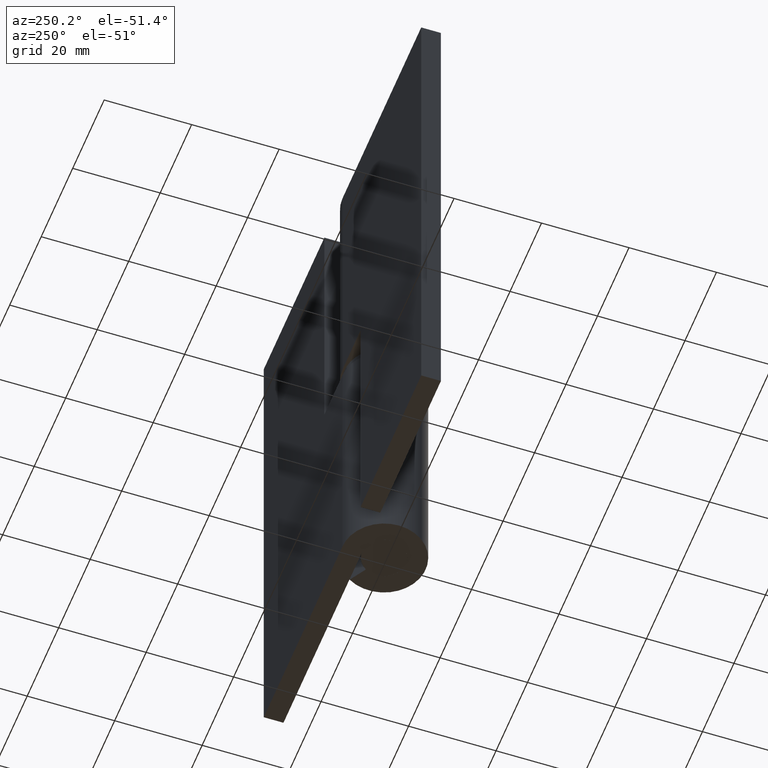
[diagram: clean part render]
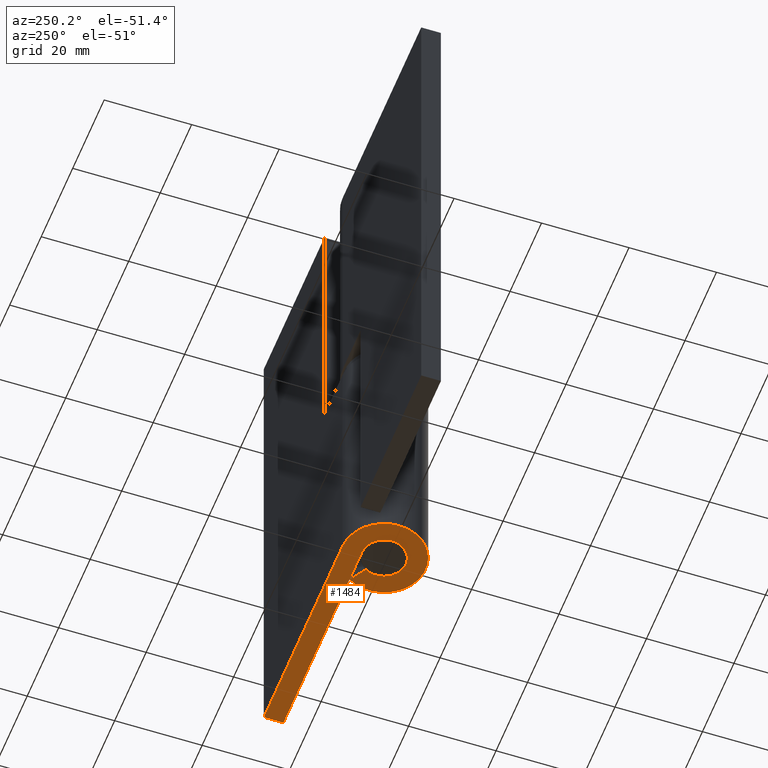
[diagram: same view with one face highlighted and labeled with its STEP entity id]
A machine part, auxiliary view. The second image highlights one B-rep face of the part: STEP entity #1484.
In plain terms, the highlighted face is a freeform B-spline surface patch.
Its self-contained STEP definition (entity closure, byte-faithful):
#1407=CARTESIAN_POINT('',(-12.471756635029839,-10.447973575599120,0.0));
#1408=CARTESIAN_POINT('',(52.972013718958777,-10.447973575599120,0.0));
#1409=CARTESIAN_POINT('',(-12.471756635029839,10.448999265035310,0.0));
#1410=CARTESIAN_POINT('',(52.972013718958777,10.448999265035310,0.0));
#1411=B_SPLINE_SURFACE_WITH_KNOTS('',1,1,((#1407,#1409),(#1408,#1410)),.UNSPECIFIED.,.F.,.F.,.U.,(2,2),(2,2),(0.0,65.443770353988612),(0.0,20.896972840634430),.UNSPECIFIED.);
#1412=CARTESIAN_POINT('',(4.267622743181081,2.605263157894730,0.0));
#1413=VERTEX_POINT('',#1412);
#1414=CARTESIAN_POINT('',(0.0,5.0,0.0));
#1415=VERTEX_POINT('',#1414);
#1416=CARTESIAN_POINT('',(4.267622743181078,2.605263157894728,0.0));
#1417=CARTESIAN_POINT('',(6.279409924410268,-0.690199990631001,0.0));
#1418=CARTESIAN_POINT('',(3.599859763297245,-3.470015804660478,0.0));
#1419=CARTESIAN_POINT('',(0.920309602184222,-6.249831618689957,0.0));
#1420=CARTESIAN_POINT('',(-2.446802424647964,-4.360407996361905,0.0));
#1421=CARTESIAN_POINT('',(-5.813914451480154,-2.470984374033851,0.0));
#1422=CARTESIAN_POINT('',(-4.837460076414559,1.264507812983077,0.0));
#1423=CARTESIAN_POINT('',(-3.861005701348966,4.999999999999999,0.0));
#1424=CARTESIAN_POINT('',(0.0,5.0,0.0));
#1432=(BOUNDED_CURVE()B_SPLINE_CURVE(2,(#1416,#1417,#1418,#1419,#1420,#1421,#1422,#1423,#1424),.UNSPECIFIED.,.F.,.U.)B_SPLINE_CURVE_WITH_KNOTS((3,2,2,2,3),(0.0,0.250000000000000,0.500000000000000,0.750000000000000,1.0),.UNSPECIFIED.)CURVE()GEOMETRIC_REPRESENTATION_ITEM()RATIONAL_B_SPLINE_CURVE((1.0,0.791486437848627,1.0,0.791486437848627,1.0,0.791486437848627,1.0,0.791486437848627,1.0))REPRESENTATION_ITEM(''));
#1433=EDGE_CURVE('',#1413,#1415,#1432,.T.);
#1434=ORIENTED_EDGE('',*,*,#1433,.F.);
#1435=CARTESIAN_POINT('',(8.108483212044041,4.950000000000000,0.0));
#1436=VERTEX_POINT('',#1435);
#1437=CARTESIAN_POINT('',(8.108483212044041,4.950000000000000,0.0));
#1438=CARTESIAN_POINT('',(4.267622743181081,2.605263157894730,0.0));
#1439=QUASI_UNIFORM_CURVE('',1,(#1437,#1438),.UNSPECIFIED.,.F.,.U.);
#1440=EDGE_CURVE('',#1436,#1413,#1439,.T.);
#1441=ORIENTED_EDGE('',*,*,#1440,.F.);
#1442=CARTESIAN_POINT('',(0.0,9.500000000000000,0.0));
#1443=VERTEX_POINT('',#1442);
#1444=CARTESIAN_POINT('',(8.108483212044039,4.949999999999998,0.0));
#1445=CARTESIAN_POINT('',(11.930878856379515,-1.311379982198886,0.0));
#1446=CARTESIAN_POINT('',(6.839733550264771,-6.593030028854902,0.0));
#1447=CARTESIAN_POINT('',(1.748588244150024,-11.874680075510922,0.0));
#1448=CARTESIAN_POINT('',(-4.648924606831132,-8.284775193087620,0.0));
#1449=CARTESIAN_POINT('',(-11.046437457812292,-4.694870310664316,0.0));
#1450=CARTESIAN_POINT('',(-9.191174145187663,2.402564844667847,0.0));
#1451=CARTESIAN_POINT('',(-7.335910832563033,9.500000000000002,0.0));
#1452=CARTESIAN_POINT('',(0.0,9.500000000000000,0.0));
#1460=(BOUNDED_CURVE()B_SPLINE_CURVE(2,(#1444,#1445,#1446,#1447,#1448,#1449,#1450,#1451,#1452),.UNSPECIFIED.,.F.,.U.)B_SPLINE_CURVE_WITH_KNOTS((3,2,2,2,3),(0.0,0.250000000000000,0.500000000000000,0.750000000000000,1.0),.UNSPECIFIED.)CURVE()GEOMETRIC_REPRESENTATION_ITEM()RATIONAL_B_SPLINE_CURVE((1.0,0.791486437848626,1.0,0.791486437848626,1.0,0.791486437848626,1.0,0.791486437848626,1.0))REPRESENTATION_ITEM(''));
#1461=EDGE_CURVE('',#1436,#1443,#1460,.T.);
#1462=ORIENTED_EDGE('',*,*,#1461,.T.);
#1463=CARTESIAN_POINT('',(50.0,9.500000000000000,0.0));
#1464=VERTEX_POINT('',#1463);
#1465=CARTESIAN_POINT('',(50.0,9.500000000000000,0.0));
#1466=CARTESIAN_POINT('',(0.0,9.500000000000000,0.0));
#1467=QUASI_UNIFORM_CURVE('',1,(#1465,#1466),.UNSPECIFIED.,.F.,.U.);
#1468=EDGE_CURVE('',#1464,#1443,#1467,.T.);
#1469=ORIENTED_EDGE('',*,*,#1468,.F.);
#1470=CARTESIAN_POINT('',(50.0,5.0,0.0));
#1471=VERTEX_POINT('',#1470);
#1472=CARTESIAN_POINT('',(50.0,5.0,0.0));
#1473=CARTESIAN_POINT('',(50.0,9.500000000000000,0.0));
#1474=QUASI_UNIFORM_CURVE('',1,(#1472,#1473),.UNSPECIFIED.,.F.,.U.);
#1475=EDGE_CURVE('',#1471,#1464,#1474,.T.);
#1476=ORIENTED_EDGE('',*,*,#1475,.F.);
#1477=CARTESIAN_POINT('',(0.0,5.0,0.0));
#1478=CARTESIAN_POINT('',(50.0,5.0,0.0));
#1479=QUASI_UNIFORM_CURVE('',1,(#1477,#1478),.UNSPECIFIED.,.F.,.U.);
#1480=EDGE_CURVE('',#1415,#1471,#1479,.T.);
#1481=ORIENTED_EDGE('',*,*,#1480,.F.);
#1482=EDGE_LOOP('',(#1434,#1441,#1462,#1469,#1476,#1481));
#1483=FACE_OUTER_BOUND('',#1482,.T.);
#1484=ADVANCED_FACE('',(#1483),#1411,.F.);